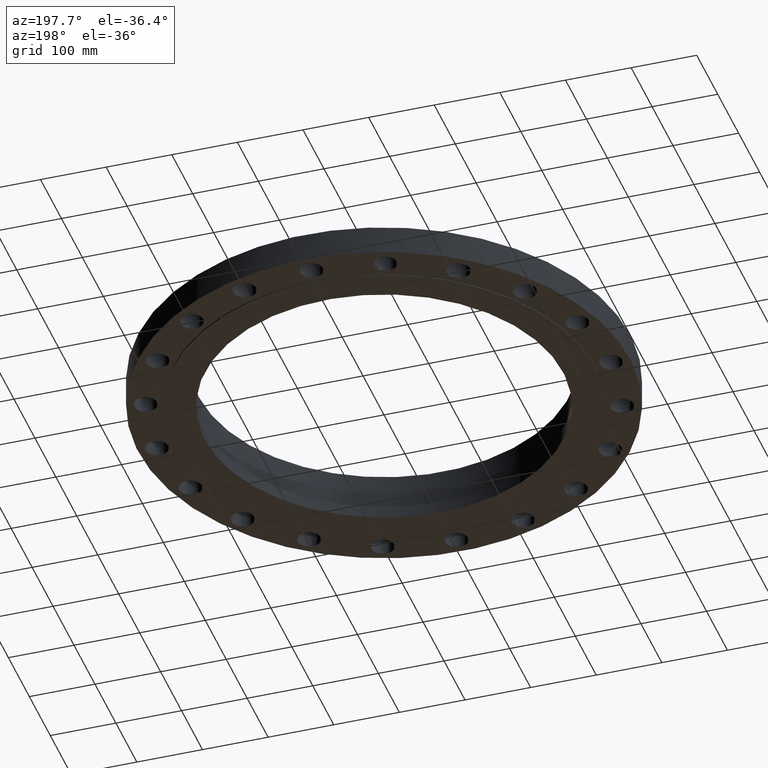
[diagram: clean part render]
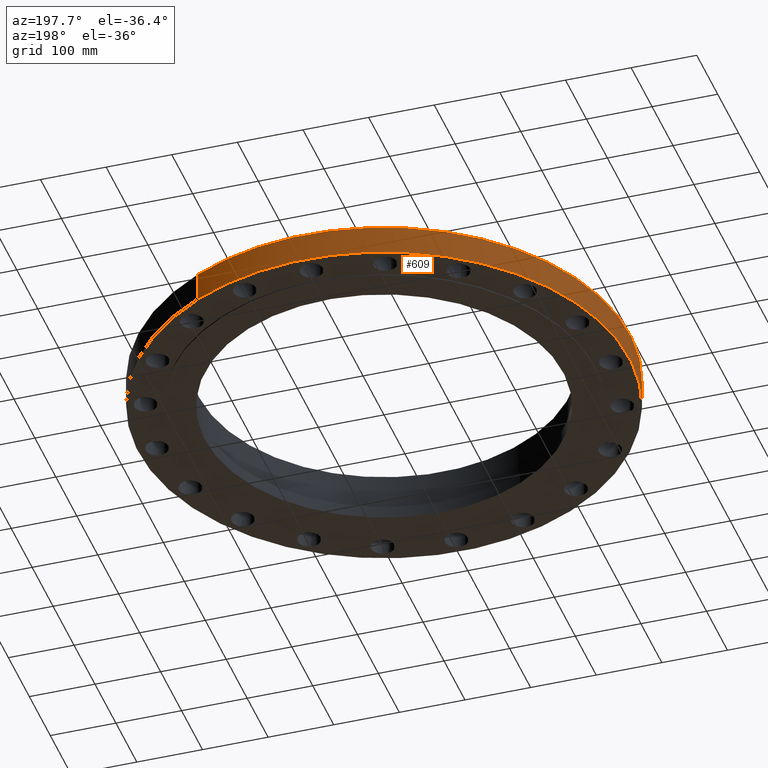
[diagram: same view with one face highlighted and labeled with its STEP entity id]
A machine part, auxiliary view. The second image highlights one B-rep face of the part: STEP entity #609.
In plain terms, the highlighted cylindrical surface (partial cylindrical patch) has radius 374.65 mm, axis along (0, 0, -1).
Its self-contained STEP definition (entity closure, byte-faithful):
#198=AXIS2_PLACEMENT_3D('Circle Axis2P3D',#196,#197,$) ;
#582=AXIS2_PLACEMENT_3D('Cylinder Axis2P3D',#579,#580,#581) ;
#593=AXIS2_PLACEMENT_3D('Circle Axis2P3D',#591,#592,$) ;
#196=CARTESIAN_POINT('Axis2P3D Location',(0.,0.,0.)) ;
#200=CARTESIAN_POINT('Vertex',(-7.07152669444,-12.9443427879,1.95818864186E-015)) ;
#202=CARTESIAN_POINT('Vertex',(7.07152669444,12.9443427879,1.95818864186E-015)) ;
#579=CARTESIAN_POINT('Axis2P3D Location',(0.,0.,1.50375000001)) ;
#584=CARTESIAN_POINT('Line Origine',(-7.07152669444,-12.9443427879,0.875000000004)) ;
#588=CARTESIAN_POINT('Vertex',(-7.07152669444,-12.9443427879,1.75000000001)) ;
#591=CARTESIAN_POINT('Axis2P3D Location',(0.,0.,1.75000000001)) ;
#595=CARTESIAN_POINT('Vertex',(7.07152669444,12.9443427879,1.75000000001)) ;
#598=CARTESIAN_POINT('Line Origine',(7.07152669444,12.9443427879,0.875000000004)) ;
#197=DIRECTION('Axis2P3D Direction',(0.,0.,-0.0393700787402)) ;
#580=DIRECTION('Axis2P3D Direction',(0.,0.,-0.0393700787402)) ;
#581=DIRECTION('Axis2P3D XDirection',(0.0188750212049,0.0345504945626,0.)) ;
#585=DIRECTION('Vector Direction',(0.,0.,-0.0393700787402)) ;
#592=DIRECTION('Axis2P3D Direction',(0.,0.,-0.0393700787402)) ;
#599=DIRECTION('Vector Direction',(0.,0.,-0.0393700787402)) ;
#586=VECTOR('Line Direction',#585,0.0393700787402) ;
#600=VECTOR('Line Direction',#599,0.0393700787402) ;
#604=ORIENTED_EDGE('',*,*,#204,.F.) ;
#605=ORIENTED_EDGE('',*,*,#590,.T.) ;
#606=ORIENTED_EDGE('',*,*,#597,.T.) ;
#607=ORIENTED_EDGE('',*,*,#602,.F.) ;
#609=ADVANCED_FACE('PartBody',(#608),#583,.T.) ;
#199=CIRCLE('generated circle',#198,14.7500000001) ;
#594=CIRCLE('generated circle',#593,14.7500000001) ;
#583=CYLINDRICAL_SURFACE('generated cylinder',#582,14.7500000001) ;
#204=EDGE_CURVE('',#201,#203,#199,.T.) ;
#590=EDGE_CURVE('',#201,#589,#587,.F.) ;
#597=EDGE_CURVE('',#589,#596,#594,.T.) ;
#602=EDGE_CURVE('',#203,#596,#601,.F.) ;
#603=EDGE_LOOP('',(#604,#605,#606,#607)) ;
#608=FACE_OUTER_BOUND('',#603,.T.) ;
#587=LINE('Line',#584,#586) ;
#601=LINE('Line',#598,#600) ;
#201=VERTEX_POINT('',#200) ;
#203=VERTEX_POINT('',#202) ;
#589=VERTEX_POINT('',#588) ;
#596=VERTEX_POINT('',#595) ;